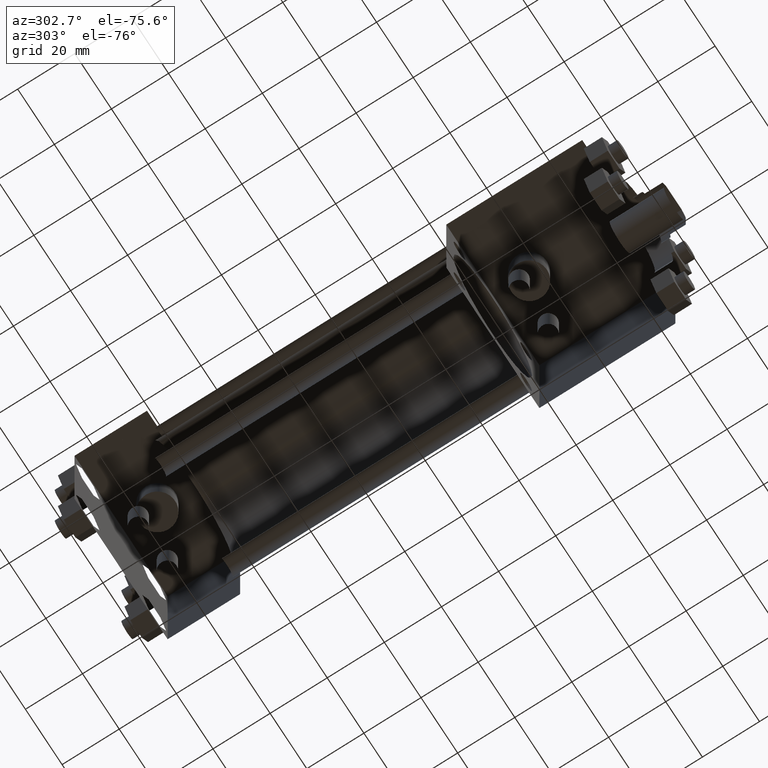
[diagram: clean part render]
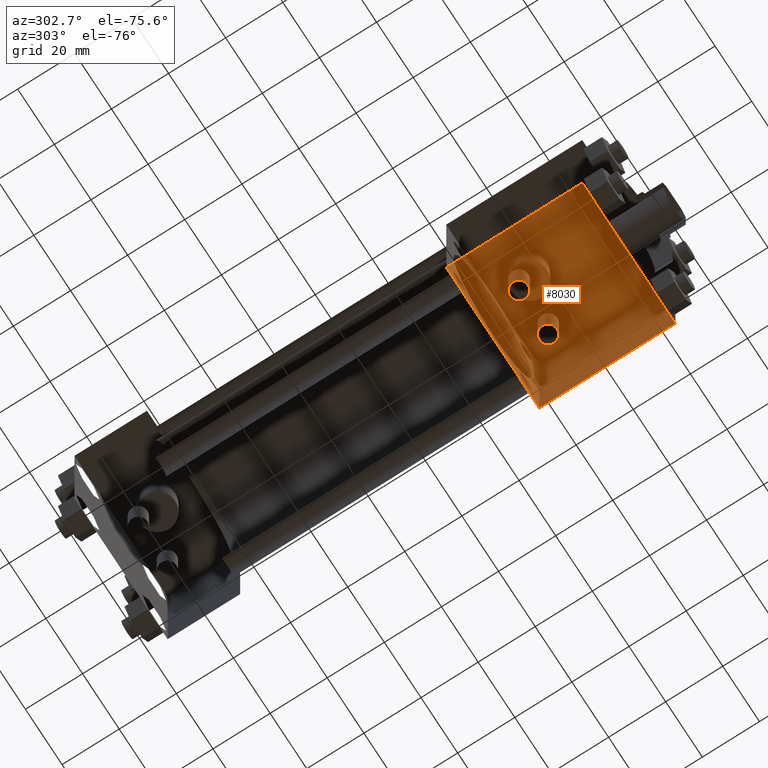
[diagram: same view with one face highlighted and labeled with its STEP entity id]
A machine part, auxiliary view. The second image highlights one B-rep face of the part: STEP entity #8030.
In plain terms, the highlighted planar face has unit normal (0, 0, -1).
Its self-contained STEP definition (entity closure, byte-faithful):
#1846=EDGE_CURVE('',#1852,#1852,#1847,.T.);
#1847=CIRCLE('',#1848,3.175000000E+000);
#1848=AXIS2_PLACEMENT_3D('',#1849,#1850,#1851);
#1849=CARTESIAN_POINT('',(-7.937500000E+000,4.921250000E+001,-2.540000000E+001));
#1850=DIRECTION('',(0.0E+000,0.0E+000,1.0E+000));
#1851=DIRECTION('',(0.0E+000,1.0E+000,0.0E+000));
#1852=VERTEX_POINT('',#1853);
#1853=CARTESIAN_POINT('',(-7.937500000E+000,5.238750000E+001,-2.540000000E+001));
#1881=EDGE_CURVE('',#1887,#1887,#1882,.T.);
#1882=CIRCLE('',#1883,3.175000000E+000);
#1883=AXIS2_PLACEMENT_3D('',#1884,#1885,#1886);
#1884=CARTESIAN_POINT('',(7.937500000E+000,4.921250000E+001,-2.540000000E+001));
#1885=DIRECTION('',(0.0E+000,0.0E+000,1.0E+000));
#1886=DIRECTION('',(0.0E+000,1.0E+000,0.0E+000));
#1887=VERTEX_POINT('',#1888);
#1888=CARTESIAN_POINT('',(7.937500000E+000,5.238750000E+001,-2.540000000E+001));
#1917=VERTEX_POINT('',#1919);
#1919=CARTESIAN_POINT('',(-2.540000000E+001,1.587500000E+001,-2.540000000E+001));
#1932=VERTEX_POINT('',#1933);
#1933=CARTESIAN_POINT('',(-2.540000000E+001,6.350000000E+001,-2.540000000E+001));
#1934=EDGE_CURVE('',#1932,#1917,#1935,.T.);
#1935=LINE('',#1936,#1937);
#1936=CARTESIAN_POINT('',(-2.540000000E+001,6.350000000E+001,-2.540000000E+001));
#1937=VECTOR('',#1938,1.0E+000);
#1938=DIRECTION('',(0.0E+000,-1.0E+000,0.0E+000));
#1991=VERTEX_POINT('',#1992);
#1992=CARTESIAN_POINT('',(2.540000000E+001,1.587500000E+001,-2.540000000E+001));
#1993=EDGE_CURVE('',#1998,#1991,#1994,.T.);
#1994=LINE('',#1995,#1996);
#1995=CARTESIAN_POINT('',(2.540000000E+001,6.350000000E+001,-2.540000000E+001));
#1996=VECTOR('',#1997,1.0E+000);
#1997=DIRECTION('',(0.0E+000,-1.0E+000,0.0E+000));
#1998=VERTEX_POINT('',#1999);
#1999=CARTESIAN_POINT('',(2.540000000E+001,6.350000000E+001,-2.540000000E+001));
#2010=FACE_OUTER_BOUND('',#2013,.T.);
#2011=FACE_BOUND('',#2014,.T.);
#2012=FACE_BOUND('',#2015,.T.);
#2013=EDGE_LOOP('',(#2016));
#2014=EDGE_LOOP('',(#2017));
#2015=EDGE_LOOP('',(#2018,#2019,#2020,#2021));
#2016=ORIENTED_EDGE('',*,*,#1846,.T.);
#2017=ORIENTED_EDGE('',*,*,#1881,.T.);
#2018=ORIENTED_EDGE('',*,*,#2022,.F.);
#2019=ORIENTED_EDGE('',*,*,#1934,.F.);
#2020=ORIENTED_EDGE('',*,*,#2027,.T.);
#2021=ORIENTED_EDGE('',*,*,#1993,.T.);
#2022=EDGE_CURVE('',#1917,#1991,#2023,.T.);
#2023=LINE('',#2024,#2025);
#2024=CARTESIAN_POINT('',(-2.540000000E+001,1.587500000E+001,-2.540000000E+001));
#2025=VECTOR('',#2026,1.0E+000);
#2026=DIRECTION('',(1.0E+000,0.0E+000,0.0E+000));
#2027=EDGE_CURVE('',#1932,#1998,#2028,.T.);
#2028=LINE('',#2029,#2030);
#2029=CARTESIAN_POINT('',(-2.540000000E+001,6.350000000E+001,-2.540000000E+001));
#2030=VECTOR('',#2031,1.0E+000);
#2031=DIRECTION('',(1.0E+000,0.0E+000,0.0E+000));
#2032=PLANE('',#2033);
#2033=AXIS2_PLACEMENT_3D('',#2034,#2035,#2036);
#2034=CARTESIAN_POINT('',(-2.540000000E+001,6.350000000E+001,-2.540000000E+001));
#2035=DIRECTION('',(0.0E+000,0.0E+000,-1.0E+000));
#2036=DIRECTION('',(-1.0E+000,0.0E+000,0.0E+000));
#8030=ADVANCED_FACE('',(#2010,#2011,#2012),#2032,.T.);